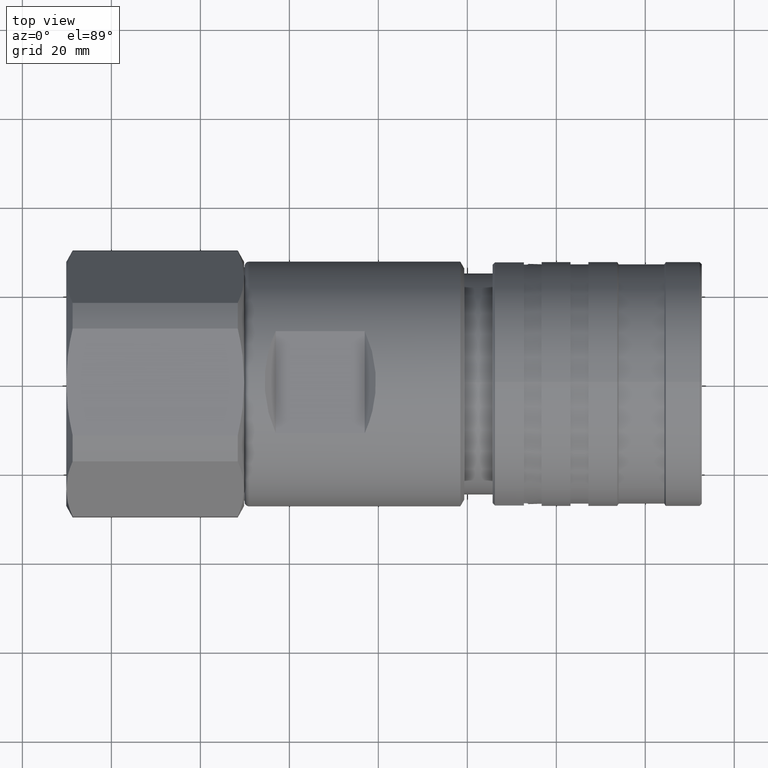
[diagram: clean part render]
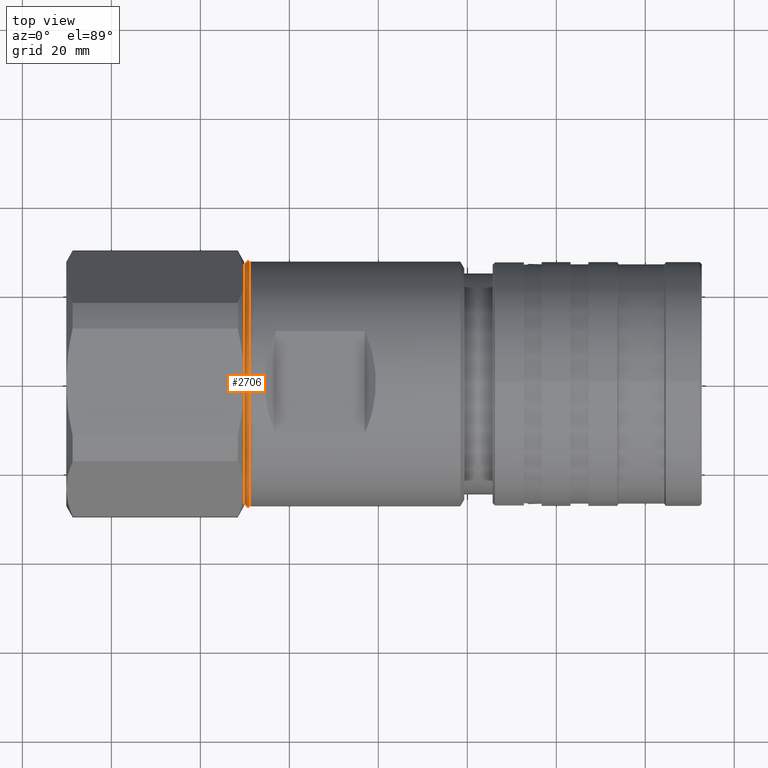
[diagram: same view with one face highlighted and labeled with its STEP entity id]
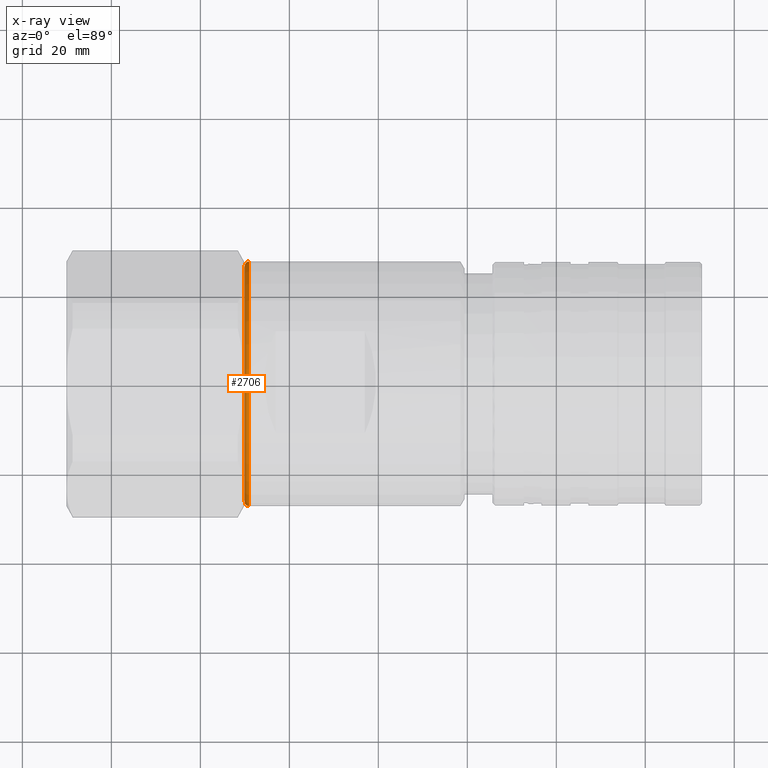
[diagram: x-ray of the same camera — body ghosted, the highlighted face saturated]
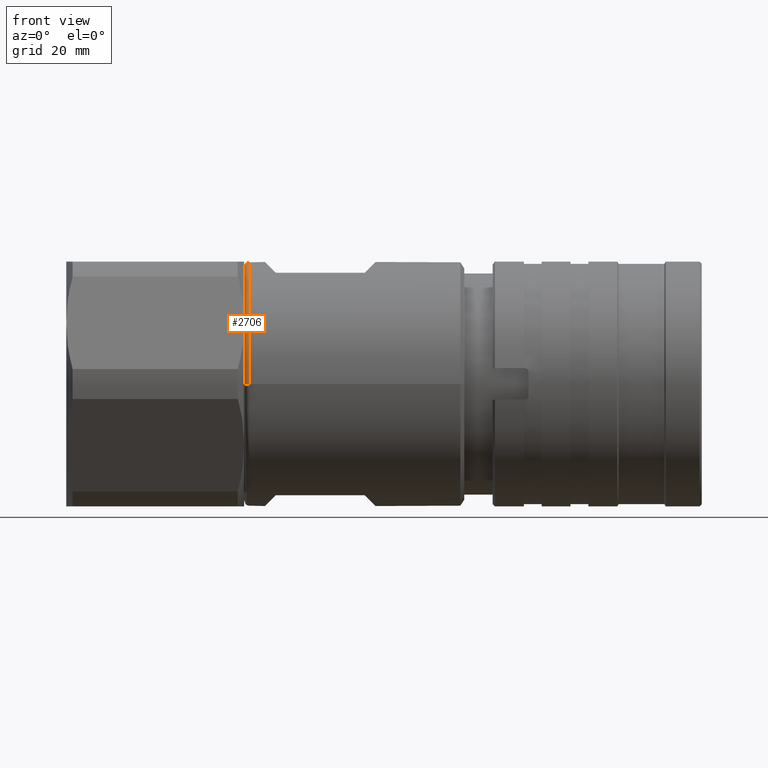
[diagram: same view with one face highlighted and labeled with its STEP entity id]
A machine part, top view. The second image highlights one B-rep face of the part: STEP entity #2706.
The next image is the same camera in x-ray: the body ghosted, the highlighted face saturated — about 0% of this face is hidden behind the body in this view.
A second angle (front view) of the same face is appended — the face is thin or edge-on in the first view.
In plain terms, the highlighted toroidal blend (fillet) surface has major radius 26.5 mm and minor (blend) radius 1 mm.
Its self-contained STEP definition (entity closure, byte-faithful):
#788 = EDGE_LOOP ( 'NONE', ( #7496, #7495, #7529, #7530 ) ) ;
#1268 = EDGE_CURVE ( 'NONE', #4252, #4276, #6080, .T. ) ;
#1326 = CARTESIAN_POINT ( 'NONE',  ( -30.05000000000000100, -7.557865155465397900E-015, 1.723978989244520000E-014 ) ) ;
#1354 = DIRECTION ( 'NONE',  ( 3.901668620590965800E-016, 1.000000000000000000, 4.996003610813201500E-016 ) ) ;
#1394 = CARTESIAN_POINT ( 'NONE',  ( -29.04999999999999000, 26.49999999999999300, 3.023210939372618300E-014 ) ) ;
#1399 = DIRECTION ( 'NONE',  ( 2.470900673739963100E-016, -4.996003610813201500E-016, 1.000000000000000000 ) ) ;
#1401 = DIRECTION ( 'NONE',  ( 0.0000000000000000000, -1.000000000000000000, -4.996003610813204400E-016 ) ) ;
#1609 = DIRECTION ( 'NONE',  ( -1.000000000000000000, 3.901668620590964800E-016, 2.470900673739965100E-016 ) ) ;
#1705 = CARTESIAN_POINT ( 'NONE',  ( -29.05000000000000100, -6.218321820631080200E-015, 1.699269982507119700E-014 ) ) ;
#1727 = DIRECTION ( 'NONE',  ( 3.927675794664468900E-016, 1.000000000000000000, 4.996003610813200500E-016 ) ) ;
#2272 = DIRECTION ( 'NONE',  ( -1.000000000000000000, 3.901668620590964800E-016, 2.470900673739965100E-016 ) ) ;
#2330 = CARTESIAN_POINT ( 'NONE',  ( -29.05000000000001100, -26.50000000000000700, 5.079762386757310200E-016 ) ) ;
#2353 = DIRECTION ( 'NONE',  ( -2.470900673739962600E-016, 6.220650409960554900E-016, -1.000000000000000000 ) ) ;
#2443 = DIRECTION ( 'NONE',  ( 0.0000000000000000000, 1.000000000000000000, 6.220650409960550000E-016 ) ) ;
#2706 = ADVANCED_FACE ( 'NONE', ( #5683 ), #5682, .T. ) ;
#2717 = CARTESIAN_POINT ( 'NONE',  ( -29.04999999999999000, 27.49999999999999300, 3.073170975480750300E-014 ) ) ;
#2749 = CARTESIAN_POINT ( 'NONE',  ( -30.05000000000001100, -26.50000000000000700, 3.204887518647065800E-016 ) ) ;
#2900 = CARTESIAN_POINT ( 'NONE',  ( -29.05000000000000100, -7.948032017524489300E-015, 1.699269982507119700E-014 ) ) ;
#2910 = DIRECTION ( 'NONE',  ( -1.000000000000000000, 3.901668620590964800E-016, 2.470900673739965100E-016 ) ) ;
#2937 = DIRECTION ( 'NONE',  ( 3.784851220313033800E-016, 1.000000000000000000, 4.996003610813201500E-016 ) ) ;
#3152 = CARTESIAN_POINT ( 'NONE',  ( -29.05000000000001100, -27.50000000000000700, -1.140888023203256300E-016 ) ) ;
#3229 = CARTESIAN_POINT ( 'NONE',  ( -30.04999999999999000, 26.49999999999999300, 3.047919946110017900E-014 ) ) ;
#4009 = EDGE_CURVE ( 'NONE', #4556, #4252, #5464, .T. ) ;
#4011 = EDGE_CURVE ( 'NONE', #4243, #4276, #5625, .T. ) ;
#4243 = VERTEX_POINT ( 'NONE', #2717 ) ;
#4252 = VERTEX_POINT ( 'NONE', #2749 ) ;
#4276 = VERTEX_POINT ( 'NONE', #3229 ) ;
#4556 = VERTEX_POINT ( 'NONE', #3152 ) ;
#5139 = CIRCLE ( 'NONE', #6455, 27.50000000000000000 ) ;
#5464 = CIRCLE ( 'NONE', #6256, 1.000000000000000900 ) ;
#5625 = CIRCLE ( 'NONE', #6257, 1.000000000000000900 ) ;
#5682 = TOROIDAL_SURFACE ( 'NONE', #6588, 26.50000000000000000, 1.000000000000000000 ) ;
#5683 = FACE_OUTER_BOUND ( 'NONE', #788, .T. ) ;
#6080 = CIRCLE ( 'NONE', #6660, 26.50000000000000000 ) ;
#6256 = AXIS2_PLACEMENT_3D ( 'NONE', #2330, #2353, #2443 ) ;
#6257 = AXIS2_PLACEMENT_3D ( 'NONE', #1394, #1399, #1401 ) ;
#6455 = AXIS2_PLACEMENT_3D ( 'NONE', #2900, #2910, #2937 ) ;
#6588 = AXIS2_PLACEMENT_3D ( 'NONE', #1705, #2272, #1354 ) ;
#6641 = EDGE_CURVE ( 'NONE', #4556, #4243, #5139, .T. ) ;
#6660 = AXIS2_PLACEMENT_3D ( 'NONE', #1326, #1609, #1727 ) ;
#7495 = ORIENTED_EDGE ( 'NONE', *, *, #6641, .T. ) ;
#7496 = ORIENTED_EDGE ( 'NONE', *, *, #4009, .F. ) ;
#7529 = ORIENTED_EDGE ( 'NONE', *, *, #4011, .T. ) ;
#7530 = ORIENTED_EDGE ( 'NONE', *, *, #1268, .F. ) ;